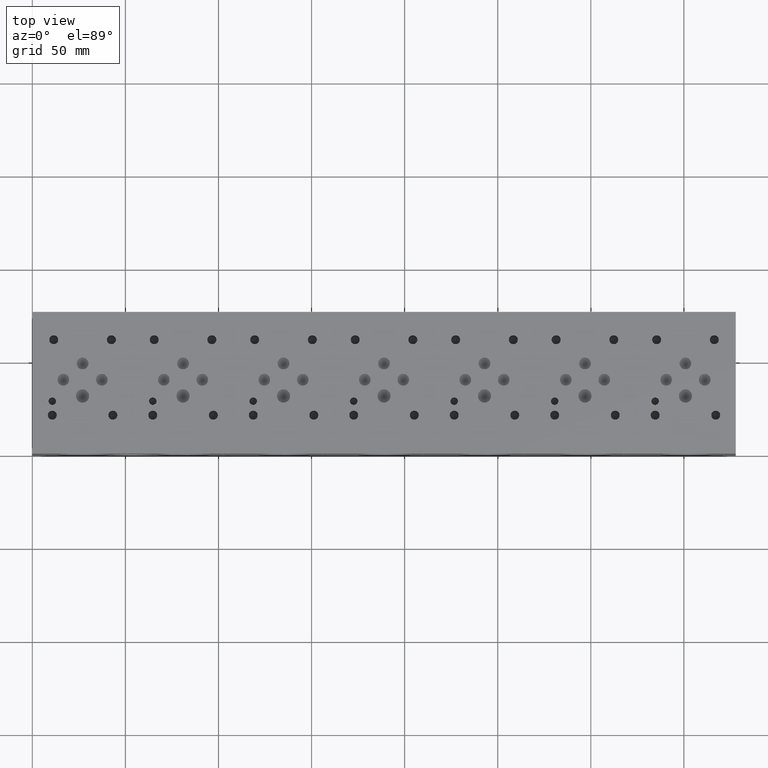
[diagram: clean part render]
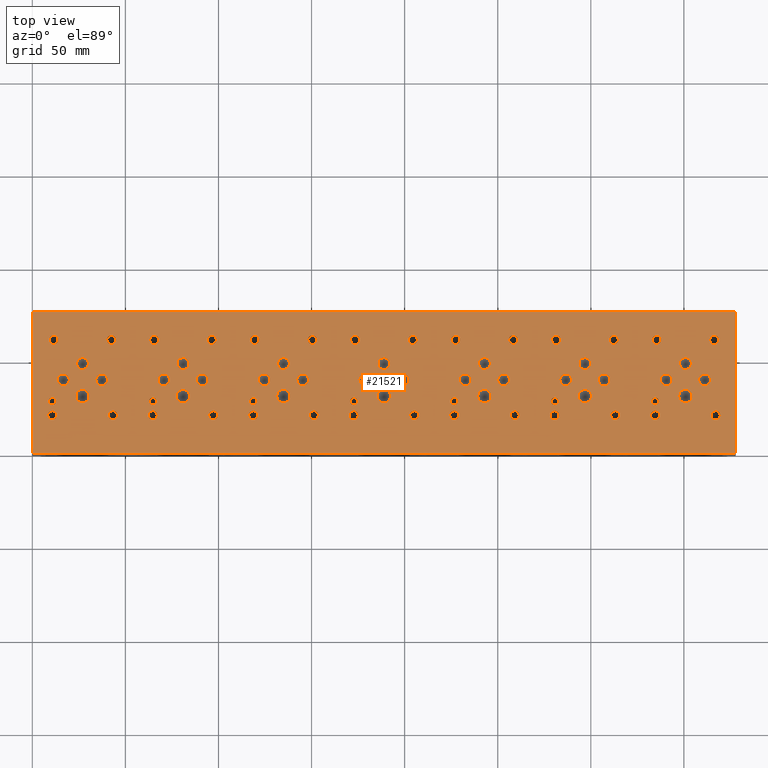
[diagram: same view with one face highlighted and labeled with its STEP entity id]
A machine part, top view. The second image highlights one B-rep face of the part: STEP entity #21521.
In plain terms, the highlighted planar face has unit normal (0, 0, 1).
Its self-contained STEP definition (entity closure, byte-faithful):
#442=CIRCLE('',#22077,1.9812);
#443=CIRCLE('',#22078,1.9812);
#446=CIRCLE('',#22083,1.9812);
#447=CIRCLE('',#22084,1.9812);
#450=CIRCLE('',#22089,1.9812);
#451=CIRCLE('',#22090,1.9812);
#454=CIRCLE('',#22095,1.9812);
#455=CIRCLE('',#22096,1.9812);
#458=CIRCLE('',#22101,1.9812);
#459=CIRCLE('',#22102,1.9812);
#462=CIRCLE('',#22107,1.9812);
#463=CIRCLE('',#22108,1.9812);
#466=CIRCLE('',#22113,3.5687);
#467=CIRCLE('',#22114,3.5687);
#470=CIRCLE('',#22119,3.5687);
#471=CIRCLE('',#22120,3.5687);
#474=CIRCLE('',#22125,3.5687);
#475=CIRCLE('',#22126,3.5687);
#478=CIRCLE('',#22131,3.5687);
#479=CIRCLE('',#22132,3.5687);
#482=CIRCLE('',#22137,3.5687);
#483=CIRCLE('',#22138,3.5687);
#486=CIRCLE('',#22143,3.5687);
#487=CIRCLE('',#22144,3.5687);
#490=CIRCLE('',#22149,3.5687);
#491=CIRCLE('',#22150,3.5687);
#494=CIRCLE('',#22155,3.175);
#495=CIRCLE('',#22156,3.175);
#498=CIRCLE('',#22161,3.175);
#499=CIRCLE('',#22162,3.175);
#502=CIRCLE('',#22167,3.175);
#503=CIRCLE('',#22168,3.175);
#506=CIRCLE('',#22173,3.175);
#507=CIRCLE('',#22174,3.175);
#510=CIRCLE('',#22179,3.175);
#511=CIRCLE('',#22180,3.175);
#514=CIRCLE('',#22185,3.175);
#515=CIRCLE('',#22186,3.175);
#518=CIRCLE('',#22191,3.175);
#519=CIRCLE('',#22192,3.175);
#522=CIRCLE('',#22197,3.175);
#523=CIRCLE('',#22198,3.175);
#526=CIRCLE('',#22203,3.175);
#527=CIRCLE('',#22204,3.175);
#530=CIRCLE('',#22209,3.175);
#531=CIRCLE('',#22210,3.175);
#534=CIRCLE('',#22215,3.175);
#535=CIRCLE('',#22216,3.175);
#538=CIRCLE('',#22221,3.175);
#539=CIRCLE('',#22222,3.175);
#542=CIRCLE('',#22227,3.175);
#543=CIRCLE('',#22228,3.175);
#546=CIRCLE('',#22233,3.175);
#547=CIRCLE('',#22234,3.175);
#550=CIRCLE('',#22239,3.175);
#551=CIRCLE('',#22240,3.175);
#554=CIRCLE('',#22245,3.175);
#555=CIRCLE('',#22246,3.175);
#558=CIRCLE('',#22251,3.175);
#559=CIRCLE('',#22252,3.175);
#562=CIRCLE('',#22257,3.175);
#563=CIRCLE('',#22258,3.175);
#566=CIRCLE('',#22263,3.175);
#567=CIRCLE('',#22264,3.175);
#570=CIRCLE('',#22269,3.175);
#571=CIRCLE('',#22270,3.175);
#574=CIRCLE('',#22275,3.175);
#575=CIRCLE('',#22276,3.175);
#578=CIRCLE('',#22281,1.9812);
#579=CIRCLE('',#22282,1.9812);
#585=CIRCLE('',#22291,2.413);
#586=CIRCLE('',#22292,2.413);
#592=CIRCLE('',#22302,2.413);
#593=CIRCLE('',#22303,2.413);
#599=CIRCLE('',#22313,2.413);
#600=CIRCLE('',#22314,2.413);
#606=CIRCLE('',#22324,2.413);
#607=CIRCLE('',#22325,2.413);
#613=CIRCLE('',#22335,2.413);
#614=CIRCLE('',#22336,2.413);
#620=CIRCLE('',#22346,2.413);
#621=CIRCLE('',#22347,2.413);
#627=CIRCLE('',#22357,2.413);
#628=CIRCLE('',#22358,2.413);
#634=CIRCLE('',#22368,2.413);
#635=CIRCLE('',#22369,2.413);
#641=CIRCLE('',#22379,2.413);
#642=CIRCLE('',#22380,2.413);
#648=CIRCLE('',#22390,2.413);
#649=CIRCLE('',#22391,2.413);
#655=CIRCLE('',#22401,2.413);
#656=CIRCLE('',#22402,2.413);
#662=CIRCLE('',#22412,2.413);
#663=CIRCLE('',#22413,2.413);
#669=CIRCLE('',#22423,2.413);
#670=CIRCLE('',#22424,2.413);
#676=CIRCLE('',#22434,2.413);
#677=CIRCLE('',#22435,2.413);
#683=CIRCLE('',#22445,2.413);
#684=CIRCLE('',#22446,2.413);
#690=CIRCLE('',#22456,2.413);
#691=CIRCLE('',#22457,2.413);
#697=CIRCLE('',#22467,2.413);
#698=CIRCLE('',#22468,2.413);
#704=CIRCLE('',#22478,2.413);
#705=CIRCLE('',#22479,2.413);
#711=CIRCLE('',#22489,2.413);
#712=CIRCLE('',#22490,2.413);
#718=CIRCLE('',#22500,2.413);
#719=CIRCLE('',#22501,2.413);
#725=CIRCLE('',#22511,2.413);
#726=CIRCLE('',#22512,2.413);
#732=CIRCLE('',#22522,2.413);
#733=CIRCLE('',#22523,2.413);
#739=CIRCLE('',#22533,2.413);
#740=CIRCLE('',#22534,2.413);
#746=CIRCLE('',#22544,2.413);
#747=CIRCLE('',#22545,2.413);
#753=CIRCLE('',#22555,2.413);
#754=CIRCLE('',#22556,2.413);
#760=CIRCLE('',#22566,2.413);
#761=CIRCLE('',#22567,2.413);
#767=CIRCLE('',#22577,2.413);
#768=CIRCLE('',#22578,2.413);
#774=CIRCLE('',#22588,2.413);
#775=CIRCLE('',#22589,2.413);
#1289=FACE_BOUND('',#4513,.T.);
#1290=FACE_BOUND('',#4514,.T.);
#1291=FACE_BOUND('',#4515,.T.);
#1292=FACE_BOUND('',#4516,.T.);
#1293=FACE_BOUND('',#4517,.T.);
#1294=FACE_BOUND('',#4518,.T.);
#1295=FACE_BOUND('',#4519,.T.);
#1296=FACE_BOUND('',#4520,.T.);
#1297=FACE_BOUND('',#4521,.T.);
#1298=FACE_BOUND('',#4522,.T.);
#1299=FACE_BOUND('',#4523,.T.);
#1300=FACE_BOUND('',#4524,.T.);
#1301=FACE_BOUND('',#4525,.T.);
#1302=FACE_BOUND('',#4526,.T.);
#1303=FACE_BOUND('',#4527,.T.);
#1304=FACE_BOUND('',#4528,.T.);
#1305=FACE_BOUND('',#4529,.T.);
#1306=FACE_BOUND('',#4530,.T.);
#1307=FACE_BOUND('',#4531,.T.);
#1308=FACE_BOUND('',#4532,.T.);
#1309=FACE_BOUND('',#4533,.T.);
#1310=FACE_BOUND('',#4534,.T.);
#1311=FACE_BOUND('',#4535,.T.);
#1312=FACE_BOUND('',#4536,.T.);
#1313=FACE_BOUND('',#4537,.T.);
#1314=FACE_BOUND('',#4538,.T.);
#1315=FACE_BOUND('',#4539,.T.);
#1316=FACE_BOUND('',#4540,.T.);
#1317=FACE_BOUND('',#4541,.T.);
#1318=FACE_BOUND('',#4542,.T.);
#1319=FACE_BOUND('',#4543,.T.);
#1320=FACE_BOUND('',#4544,.T.);
#1321=FACE_BOUND('',#4545,.T.);
#1322=FACE_BOUND('',#4546,.T.);
#1323=FACE_BOUND('',#4547,.T.);
#1324=FACE_BOUND('',#4548,.T.);
#1325=FACE_BOUND('',#4549,.T.);
#1326=FACE_BOUND('',#4550,.T.);
#1327=FACE_BOUND('',#4551,.T.);
#1328=FACE_BOUND('',#4552,.T.);
#1329=FACE_BOUND('',#4553,.T.);
#1330=FACE_BOUND('',#4554,.T.);
#1331=FACE_BOUND('',#4555,.T.);
#1332=FACE_BOUND('',#4556,.T.);
#1333=FACE_BOUND('',#4557,.T.);
#1334=FACE_BOUND('',#4558,.T.);
#1335=FACE_BOUND('',#4559,.T.);
#1336=FACE_BOUND('',#4560,.T.);
#1337=FACE_BOUND('',#4561,.T.);
#1338=FACE_BOUND('',#4562,.T.);
#1339=FACE_BOUND('',#4563,.T.);
#1340=FACE_BOUND('',#4564,.T.);
#1341=FACE_BOUND('',#4565,.T.);
#1342=FACE_BOUND('',#4566,.T.);
#1343=FACE_BOUND('',#4567,.T.);
#1344=FACE_BOUND('',#4568,.T.);
#1345=FACE_BOUND('',#4569,.T.);
#1346=FACE_BOUND('',#4570,.T.);
#1347=FACE_BOUND('',#4571,.T.);
#1348=FACE_BOUND('',#4572,.T.);
#1349=FACE_BOUND('',#4573,.T.);
#1350=FACE_BOUND('',#4574,.T.);
#1351=FACE_BOUND('',#4575,.T.);
#3217=FACE_OUTER_BOUND('',#4512,.T.);
#4512=EDGE_LOOP('',(#19063,#19064,#19065,#19066));
#4513=EDGE_LOOP('',(#19067,#19068));
#4514=EDGE_LOOP('',(#19069,#19070));
#4515=EDGE_LOOP('',(#19071,#19072));
#4516=EDGE_LOOP('',(#19073,#19074));
#4517=EDGE_LOOP('',(#19075,#19076));
#4518=EDGE_LOOP('',(#19077,#19078));
#4519=EDGE_LOOP('',(#19079,#19080));
#4520=EDGE_LOOP('',(#19081,#19082));
#4521=EDGE_LOOP('',(#19083,#19084));
#4522=EDGE_LOOP('',(#19085,#19086));
#4523=EDGE_LOOP('',(#19087,#19088));
#4524=EDGE_LOOP('',(#19089,#19090));
#4525=EDGE_LOOP('',(#19091,#19092));
#4526=EDGE_LOOP('',(#19093,#19094));
#4527=EDGE_LOOP('',(#19095,#19096));
#4528=EDGE_LOOP('',(#19097,#19098));
#4529=EDGE_LOOP('',(#19099,#19100));
#4530=EDGE_LOOP('',(#19101,#19102));
#4531=EDGE_LOOP('',(#19103,#19104));
#4532=EDGE_LOOP('',(#19105,#19106));
#4533=EDGE_LOOP('',(#19107,#19108));
#4534=EDGE_LOOP('',(#19109,#19110));
#4535=EDGE_LOOP('',(#19111,#19112));
#4536=EDGE_LOOP('',(#19113,#19114));
#4537=EDGE_LOOP('',(#19115,#19116));
#4538=EDGE_LOOP('',(#19117,#19118));
#4539=EDGE_LOOP('',(#19119,#19120));
#4540=EDGE_LOOP('',(#19121,#19122));
#4541=EDGE_LOOP('',(#19123,#19124));
#4542=EDGE_LOOP('',(#19125,#19126));
#4543=EDGE_LOOP('',(#19127,#19128));
#4544=EDGE_LOOP('',(#19129,#19130));
#4545=EDGE_LOOP('',(#19131,#19132));
#4546=EDGE_LOOP('',(#19133,#19134));
#4547=EDGE_LOOP('',(#19135,#19136));
#4548=EDGE_LOOP('',(#19137,#19138));
#4549=EDGE_LOOP('',(#19139,#19140));
#4550=EDGE_LOOP('',(#19141,#19142));
#4551=EDGE_LOOP('',(#19143,#19144));
#4552=EDGE_LOOP('',(#19145,#19146));
#4553=EDGE_LOOP('',(#19147,#19148));
#4554=EDGE_LOOP('',(#19149,#19150));
#4555=EDGE_LOOP('',(#19151,#19152));
#4556=EDGE_LOOP('',(#19153,#19154));
#4557=EDGE_LOOP('',(#19155,#19156));
#4558=EDGE_LOOP('',(#19157,#19158));
#4559=EDGE_LOOP('',(#19159,#19160));
#4560=EDGE_LOOP('',(#19161,#19162));
#4561=EDGE_LOOP('',(#19163,#19164));
#4562=EDGE_LOOP('',(#19165,#19166));
#4563=EDGE_LOOP('',(#19167,#19168));
#4564=EDGE_LOOP('',(#19169,#19170));
#4565=EDGE_LOOP('',(#19171,#19172));
#4566=EDGE_LOOP('',(#19173,#19174));
#4567=EDGE_LOOP('',(#19175,#19176));
#4568=EDGE_LOOP('',(#19177,#19178));
#4569=EDGE_LOOP('',(#19179,#19180));
#4570=EDGE_LOOP('',(#19181,#19182));
#4571=EDGE_LOOP('',(#19183,#19184));
#4572=EDGE_LOOP('',(#19185,#19186));
#4573=EDGE_LOOP('',(#19187,#19188));
#4574=EDGE_LOOP('',(#19189,#19190));
#4575=EDGE_LOOP('',(#19191,#19192));
#4872=LINE('',#30683,#6627);
#5892=LINE('',#35011,#7647);
#5950=LINE('',#35282,#7705);
#6331=LINE('',#37637,#8086);
#6627=VECTOR('',#23618,10.);
#7647=VECTOR('',#25398,10.);
#7705=VECTOR('',#25510,10.);
#8086=VECTOR('',#28199,10.);
#8431=VERTEX_POINT('',#30680);
#8432=VERTEX_POINT('',#30682);
#9312=VERTEX_POINT('',#35009);
#9370=VERTEX_POINT('',#35281);
#9425=VERTEX_POINT('',#35434);
#9426=VERTEX_POINT('',#35435);
#9430=VERTEX_POINT('',#35447);
#9431=VERTEX_POINT('',#35448);
#9435=VERTEX_POINT('',#35460);
#9436=VERTEX_POINT('',#35461);
#9440=VERTEX_POINT('',#35473);
#9441=VERTEX_POINT('',#35474);
#9445=VERTEX_POINT('',#35486);
#9446=VERTEX_POINT('',#35487);
#9450=VERTEX_POINT('',#35499);
#9451=VERTEX_POINT('',#35500);
#9455=VERTEX_POINT('',#35512);
#9456=VERTEX_POINT('',#35513);
#9460=VERTEX_POINT('',#35525);
#9461=VERTEX_POINT('',#35526);
#9465=VERTEX_POINT('',#35538);
#9466=VERTEX_POINT('',#35539);
#9470=VERTEX_POINT('',#35551);
#9471=VERTEX_POINT('',#35552);
#9475=VERTEX_POINT('',#35564);
#9476=VERTEX_POINT('',#35565);
#9480=VERTEX_POINT('',#35577);
#9481=VERTEX_POINT('',#35578);
#9485=VERTEX_POINT('',#35590);
#9486=VERTEX_POINT('',#35591);
#9490=VERTEX_POINT('',#35603);
#9491=VERTEX_POINT('',#35604);
#9495=VERTEX_POINT('',#35616);
#9496=VERTEX_POINT('',#35617);
#9500=VERTEX_POINT('',#35629);
#9501=VERTEX_POINT('',#35630);
#9505=VERTEX_POINT('',#35642);
#9506=VERTEX_POINT('',#35643);
#9510=VERTEX_POINT('',#35655);
#9511=VERTEX_POINT('',#35656);
#9515=VERTEX_POINT('',#35668);
#9516=VERTEX_POINT('',#35669);
#9520=VERTEX_POINT('',#35681);
#9521=VERTEX_POINT('',#35682);
#9525=VERTEX_POINT('',#35694);
#9526=VERTEX_POINT('',#35695);
#9530=VERTEX_POINT('',#35707);
#9531=VERTEX_POINT('',#35708);
#9535=VERTEX_POINT('',#35720);
#9536=VERTEX_POINT('',#35721);
#9540=VERTEX_POINT('',#35733);
#9541=VERTEX_POINT('',#35734);
#9545=VERTEX_POINT('',#35746);
#9546=VERTEX_POINT('',#35747);
#9550=VERTEX_POINT('',#35759);
#9551=VERTEX_POINT('',#35760);
#9555=VERTEX_POINT('',#35772);
#9556=VERTEX_POINT('',#35773);
#9560=VERTEX_POINT('',#35785);
#9561=VERTEX_POINT('',#35786);
#9565=VERTEX_POINT('',#35798);
#9566=VERTEX_POINT('',#35799);
#9570=VERTEX_POINT('',#35811);
#9571=VERTEX_POINT('',#35812);
#9575=VERTEX_POINT('',#35824);
#9576=VERTEX_POINT('',#35825);
#9580=VERTEX_POINT('',#35837);
#9581=VERTEX_POINT('',#35838);
#9585=VERTEX_POINT('',#35850);
#9586=VERTEX_POINT('',#35851);
#9590=VERTEX_POINT('',#35863);
#9591=VERTEX_POINT('',#35864);
#9595=VERTEX_POINT('',#35876);
#9596=VERTEX_POINT('',#35877);
#9603=VERTEX_POINT('',#35896);
#9604=VERTEX_POINT('',#35897);
#9611=VERTEX_POINT('',#35918);
#9612=VERTEX_POINT('',#35919);
#9619=VERTEX_POINT('',#35940);
#9620=VERTEX_POINT('',#35941);
#9627=VERTEX_POINT('',#35962);
#9628=VERTEX_POINT('',#35963);
#9635=VERTEX_POINT('',#35984);
#9636=VERTEX_POINT('',#35985);
#9643=VERTEX_POINT('',#36006);
#9644=VERTEX_POINT('',#36007);
#9651=VERTEX_POINT('',#36028);
#9652=VERTEX_POINT('',#36029);
#9659=VERTEX_POINT('',#36050);
#9660=VERTEX_POINT('',#36051);
#9667=VERTEX_POINT('',#36072);
#9668=VERTEX_POINT('',#36073);
#9675=VERTEX_POINT('',#36094);
#9676=VERTEX_POINT('',#36095);
#9683=VERTEX_POINT('',#36116);
#9684=VERTEX_POINT('',#36117);
#9691=VERTEX_POINT('',#36138);
#9692=VERTEX_POINT('',#36139);
#9699=VERTEX_POINT('',#36160);
#9700=VERTEX_POINT('',#36161);
#9707=VERTEX_POINT('',#36182);
#9708=VERTEX_POINT('',#36183);
#9715=VERTEX_POINT('',#36204);
#9716=VERTEX_POINT('',#36205);
#9723=VERTEX_POINT('',#36226);
#9724=VERTEX_POINT('',#36227);
#9731=VERTEX_POINT('',#36248);
#9732=VERTEX_POINT('',#36249);
#9739=VERTEX_POINT('',#36270);
#9740=VERTEX_POINT('',#36271);
#9747=VERTEX_POINT('',#36292);
#9748=VERTEX_POINT('',#36293);
#9755=VERTEX_POINT('',#36314);
#9756=VERTEX_POINT('',#36315);
#9763=VERTEX_POINT('',#36336);
#9764=VERTEX_POINT('',#36337);
#9771=VERTEX_POINT('',#36358);
#9772=VERTEX_POINT('',#36359);
#9779=VERTEX_POINT('',#36380);
#9780=VERTEX_POINT('',#36381);
#9787=VERTEX_POINT('',#36402);
#9788=VERTEX_POINT('',#36403);
#9795=VERTEX_POINT('',#36424);
#9796=VERTEX_POINT('',#36425);
#9803=VERTEX_POINT('',#36446);
#9804=VERTEX_POINT('',#36447);
#9811=VERTEX_POINT('',#36468);
#9812=VERTEX_POINT('',#36469);
#9819=VERTEX_POINT('',#36490);
#9820=VERTEX_POINT('',#36491);
#10706=EDGE_CURVE('',#8432,#8431,#4872,.T.);
#12012=EDGE_CURVE('',#8431,#9312,#5892,.T.);
#12094=EDGE_CURVE('',#9370,#8432,#5950,.T.);
#12168=EDGE_CURVE('',#9425,#9426,#442,.T.);
#12169=EDGE_CURVE('',#9426,#9425,#443,.T.);
#12174=EDGE_CURVE('',#9430,#9431,#446,.T.);
#12175=EDGE_CURVE('',#9431,#9430,#447,.T.);
#12180=EDGE_CURVE('',#9435,#9436,#450,.T.);
#12181=EDGE_CURVE('',#9436,#9435,#451,.T.);
#12186=EDGE_CURVE('',#9440,#9441,#454,.T.);
#12187=EDGE_CURVE('',#9441,#9440,#455,.T.);
#12192=EDGE_CURVE('',#9445,#9446,#458,.T.);
#12193=EDGE_CURVE('',#9446,#9445,#459,.T.);
#12198=EDGE_CURVE('',#9450,#9451,#462,.T.);
#12199=EDGE_CURVE('',#9451,#9450,#463,.T.);
#12204=EDGE_CURVE('',#9455,#9456,#466,.T.);
#12205=EDGE_CURVE('',#9456,#9455,#467,.T.);
#12210=EDGE_CURVE('',#9460,#9461,#470,.T.);
#12211=EDGE_CURVE('',#9461,#9460,#471,.T.);
#12216=EDGE_CURVE('',#9465,#9466,#474,.T.);
#12217=EDGE_CURVE('',#9466,#9465,#475,.T.);
#12222=EDGE_CURVE('',#9470,#9471,#478,.T.);
#12223=EDGE_CURVE('',#9471,#9470,#479,.T.);
#12228=EDGE_CURVE('',#9475,#9476,#482,.T.);
#12229=EDGE_CURVE('',#9476,#9475,#483,.T.);
#12234=EDGE_CURVE('',#9480,#9481,#486,.T.);
#12235=EDGE_CURVE('',#9481,#9480,#487,.T.);
#12240=EDGE_CURVE('',#9485,#9486,#490,.T.);
#12241=EDGE_CURVE('',#9486,#9485,#491,.T.);
#12246=EDGE_CURVE('',#9490,#9491,#494,.T.);
#12247=EDGE_CURVE('',#9491,#9490,#495,.T.);
#12252=EDGE_CURVE('',#9495,#9496,#498,.T.);
#12253=EDGE_CURVE('',#9496,#9495,#499,.T.);
#12258=EDGE_CURVE('',#9500,#9501,#502,.T.);
#12259=EDGE_CURVE('',#9501,#9500,#503,.T.);
#12264=EDGE_CURVE('',#9505,#9506,#506,.T.);
#12265=EDGE_CURVE('',#9506,#9505,#507,.T.);
#12270=EDGE_CURVE('',#9510,#9511,#510,.T.);
#12271=EDGE_CURVE('',#9511,#9510,#511,.T.);
#12276=EDGE_CURVE('',#9515,#9516,#514,.T.);
#12277=EDGE_CURVE('',#9516,#9515,#515,.T.);
#12282=EDGE_CURVE('',#9520,#9521,#518,.T.);
#12283=EDGE_CURVE('',#9521,#9520,#519,.T.);
#12288=EDGE_CURVE('',#9525,#9526,#522,.T.);
#12289=EDGE_CURVE('',#9526,#9525,#523,.T.);
#12294=EDGE_CURVE('',#9530,#9531,#526,.T.);
#12295=EDGE_CURVE('',#9531,#9530,#527,.T.);
#12300=EDGE_CURVE('',#9535,#9536,#530,.T.);
#12301=EDGE_CURVE('',#9536,#9535,#531,.T.);
#12306=EDGE_CURVE('',#9540,#9541,#534,.T.);
#12307=EDGE_CURVE('',#9541,#9540,#535,.T.);
#12312=EDGE_CURVE('',#9545,#9546,#538,.T.);
#12313=EDGE_CURVE('',#9546,#9545,#539,.T.);
#12318=EDGE_CURVE('',#9550,#9551,#542,.T.);
#12319=EDGE_CURVE('',#9551,#9550,#543,.T.);
#12324=EDGE_CURVE('',#9555,#9556,#546,.T.);
#12325=EDGE_CURVE('',#9556,#9555,#547,.T.);
#12330=EDGE_CURVE('',#9560,#9561,#550,.T.);
#12331=EDGE_CURVE('',#9561,#9560,#551,.T.);
#12336=EDGE_CURVE('',#9565,#9566,#554,.T.);
#12337=EDGE_CURVE('',#9566,#9565,#555,.T.);
#12342=EDGE_CURVE('',#9570,#9571,#558,.T.);
#12343=EDGE_CURVE('',#9571,#9570,#559,.T.);
#12348=EDGE_CURVE('',#9575,#9576,#562,.T.);
#12349=EDGE_CURVE('',#9576,#9575,#563,.T.);
#12354=EDGE_CURVE('',#9580,#9581,#566,.T.);
#12355=EDGE_CURVE('',#9581,#9580,#567,.T.);
#12360=EDGE_CURVE('',#9585,#9586,#570,.T.);
#12361=EDGE_CURVE('',#9586,#9585,#571,.T.);
#12366=EDGE_CURVE('',#9590,#9591,#574,.T.);
#12367=EDGE_CURVE('',#9591,#9590,#575,.T.);
#12372=EDGE_CURVE('',#9595,#9596,#578,.T.);
#12373=EDGE_CURVE('',#9596,#9595,#579,.T.);
#12381=EDGE_CURVE('',#9603,#9604,#585,.T.);
#12382=EDGE_CURVE('',#9604,#9603,#586,.T.);
#12391=EDGE_CURVE('',#9611,#9612,#592,.T.);
#12392=EDGE_CURVE('',#9612,#9611,#593,.T.);
#12401=EDGE_CURVE('',#9619,#9620,#599,.T.);
#12402=EDGE_CURVE('',#9620,#9619,#600,.T.);
#12411=EDGE_CURVE('',#9627,#9628,#606,.T.);
#12412=EDGE_CURVE('',#9628,#9627,#607,.T.);
#12421=EDGE_CURVE('',#9635,#9636,#613,.T.);
#12422=EDGE_CURVE('',#9636,#9635,#614,.T.);
#12431=EDGE_CURVE('',#9643,#9644,#620,.T.);
#12432=EDGE_CURVE('',#9644,#9643,#621,.T.);
#12441=EDGE_CURVE('',#9651,#9652,#627,.T.);
#12442=EDGE_CURVE('',#9652,#9651,#628,.T.);
#12451=EDGE_CURVE('',#9659,#9660,#634,.T.);
#12452=EDGE_CURVE('',#9660,#9659,#635,.T.);
#12461=EDGE_CURVE('',#9667,#9668,#641,.T.);
#12462=EDGE_CURVE('',#9668,#9667,#642,.T.);
#12471=EDGE_CURVE('',#9675,#9676,#648,.T.);
#12472=EDGE_CURVE('',#9676,#9675,#649,.T.);
#12481=EDGE_CURVE('',#9683,#9684,#655,.T.);
#12482=EDGE_CURVE('',#9684,#9683,#656,.T.);
#12491=EDGE_CURVE('',#9691,#9692,#662,.T.);
#12492=EDGE_CURVE('',#9692,#9691,#663,.T.);
#12501=EDGE_CURVE('',#9699,#9700,#669,.T.);
#12502=EDGE_CURVE('',#9700,#9699,#670,.T.);
#12511=EDGE_CURVE('',#9707,#9708,#676,.T.);
#12512=EDGE_CURVE('',#9708,#9707,#677,.T.);
#12521=EDGE_CURVE('',#9715,#9716,#683,.T.);
#12522=EDGE_CURVE('',#9716,#9715,#684,.T.);
#12531=EDGE_CURVE('',#9723,#9724,#690,.T.);
#12532=EDGE_CURVE('',#9724,#9723,#691,.T.);
#12541=EDGE_CURVE('',#9731,#9732,#697,.T.);
#12542=EDGE_CURVE('',#9732,#9731,#698,.T.);
#12551=EDGE_CURVE('',#9739,#9740,#704,.T.);
#12552=EDGE_CURVE('',#9740,#9739,#705,.T.);
#12561=EDGE_CURVE('',#9747,#9748,#711,.T.);
#12562=EDGE_CURVE('',#9748,#9747,#712,.T.);
#12571=EDGE_CURVE('',#9755,#9756,#718,.T.);
#12572=EDGE_CURVE('',#9756,#9755,#719,.T.);
#12581=EDGE_CURVE('',#9763,#9764,#725,.T.);
#12582=EDGE_CURVE('',#9764,#9763,#726,.T.);
#12591=EDGE_CURVE('',#9771,#9772,#732,.T.);
#12592=EDGE_CURVE('',#9772,#9771,#733,.T.);
#12601=EDGE_CURVE('',#9779,#9780,#739,.T.);
#12602=EDGE_CURVE('',#9780,#9779,#740,.T.);
#12611=EDGE_CURVE('',#9787,#9788,#746,.T.);
#12612=EDGE_CURVE('',#9788,#9787,#747,.T.);
#12621=EDGE_CURVE('',#9795,#9796,#753,.T.);
#12622=EDGE_CURVE('',#9796,#9795,#754,.T.);
#12631=EDGE_CURVE('',#9803,#9804,#760,.T.);
#12632=EDGE_CURVE('',#9804,#9803,#761,.T.);
#12641=EDGE_CURVE('',#9811,#9812,#767,.T.);
#12642=EDGE_CURVE('',#9812,#9811,#768,.T.);
#12651=EDGE_CURVE('',#9819,#9820,#774,.T.);
#12652=EDGE_CURVE('',#9820,#9819,#775,.T.);
#13192=EDGE_CURVE('',#9312,#9370,#6331,.T.);
#19063=ORIENTED_EDGE('',*,*,#10706,.T.);
#19064=ORIENTED_EDGE('',*,*,#12012,.T.);
#19065=ORIENTED_EDGE('',*,*,#13192,.T.);
#19066=ORIENTED_EDGE('',*,*,#12094,.T.);
#19067=ORIENTED_EDGE('',*,*,#12168,.T.);
#19068=ORIENTED_EDGE('',*,*,#12169,.T.);
#19069=ORIENTED_EDGE('',*,*,#12174,.T.);
#19070=ORIENTED_EDGE('',*,*,#12175,.T.);
#19071=ORIENTED_EDGE('',*,*,#12180,.T.);
#19072=ORIENTED_EDGE('',*,*,#12181,.T.);
#19073=ORIENTED_EDGE('',*,*,#12186,.T.);
#19074=ORIENTED_EDGE('',*,*,#12187,.T.);
#19075=ORIENTED_EDGE('',*,*,#12192,.T.);
#19076=ORIENTED_EDGE('',*,*,#12193,.T.);
#19077=ORIENTED_EDGE('',*,*,#12198,.T.);
#19078=ORIENTED_EDGE('',*,*,#12199,.T.);
#19079=ORIENTED_EDGE('',*,*,#12204,.T.);
#19080=ORIENTED_EDGE('',*,*,#12205,.T.);
#19081=ORIENTED_EDGE('',*,*,#12210,.T.);
#19082=ORIENTED_EDGE('',*,*,#12211,.T.);
#19083=ORIENTED_EDGE('',*,*,#12216,.T.);
#19084=ORIENTED_EDGE('',*,*,#12217,.T.);
#19085=ORIENTED_EDGE('',*,*,#12222,.T.);
#19086=ORIENTED_EDGE('',*,*,#12223,.T.);
#19087=ORIENTED_EDGE('',*,*,#12228,.T.);
#19088=ORIENTED_EDGE('',*,*,#12229,.T.);
#19089=ORIENTED_EDGE('',*,*,#12234,.T.);
#19090=ORIENTED_EDGE('',*,*,#12235,.T.);
#19091=ORIENTED_EDGE('',*,*,#12240,.T.);
#19092=ORIENTED_EDGE('',*,*,#12241,.T.);
#19093=ORIENTED_EDGE('',*,*,#12246,.T.);
#19094=ORIENTED_EDGE('',*,*,#12247,.T.);
#19095=ORIENTED_EDGE('',*,*,#12252,.T.);
#19096=ORIENTED_EDGE('',*,*,#12253,.T.);
#19097=ORIENTED_EDGE('',*,*,#12258,.T.);
#19098=ORIENTED_EDGE('',*,*,#12259,.T.);
#19099=ORIENTED_EDGE('',*,*,#12264,.T.);
#19100=ORIENTED_EDGE('',*,*,#12265,.T.);
#19101=ORIENTED_EDGE('',*,*,#12270,.T.);
#19102=ORIENTED_EDGE('',*,*,#12271,.T.);
#19103=ORIENTED_EDGE('',*,*,#12276,.T.);
#19104=ORIENTED_EDGE('',*,*,#12277,.T.);
#19105=ORIENTED_EDGE('',*,*,#12282,.T.);
#19106=ORIENTED_EDGE('',*,*,#12283,.T.);
#19107=ORIENTED_EDGE('',*,*,#12288,.T.);
#19108=ORIENTED_EDGE('',*,*,#12289,.T.);
#19109=ORIENTED_EDGE('',*,*,#12294,.T.);
#19110=ORIENTED_EDGE('',*,*,#12295,.T.);
#19111=ORIENTED_EDGE('',*,*,#12300,.T.);
#19112=ORIENTED_EDGE('',*,*,#12301,.T.);
#19113=ORIENTED_EDGE('',*,*,#12306,.T.);
#19114=ORIENTED_EDGE('',*,*,#12307,.T.);
#19115=ORIENTED_EDGE('',*,*,#12312,.T.);
#19116=ORIENTED_EDGE('',*,*,#12313,.T.);
#19117=ORIENTED_EDGE('',*,*,#12318,.T.);
#19118=ORIENTED_EDGE('',*,*,#12319,.T.);
#19119=ORIENTED_EDGE('',*,*,#12324,.T.);
#19120=ORIENTED_EDGE('',*,*,#12325,.T.);
#19121=ORIENTED_EDGE('',*,*,#12330,.T.);
#19122=ORIENTED_EDGE('',*,*,#12331,.T.);
#19123=ORIENTED_EDGE('',*,*,#12336,.T.);
#19124=ORIENTED_EDGE('',*,*,#12337,.T.);
#19125=ORIENTED_EDGE('',*,*,#12342,.T.);
#19126=ORIENTED_EDGE('',*,*,#12343,.T.);
#19127=ORIENTED_EDGE('',*,*,#12348,.T.);
#19128=ORIENTED_EDGE('',*,*,#12349,.T.);
#19129=ORIENTED_EDGE('',*,*,#12354,.T.);
#19130=ORIENTED_EDGE('',*,*,#12355,.T.);
#19131=ORIENTED_EDGE('',*,*,#12360,.T.);
#19132=ORIENTED_EDGE('',*,*,#12361,.T.);
#19133=ORIENTED_EDGE('',*,*,#12366,.T.);
#19134=ORIENTED_EDGE('',*,*,#12367,.T.);
#19135=ORIENTED_EDGE('',*,*,#12372,.T.);
#19136=ORIENTED_EDGE('',*,*,#12373,.T.);
#19137=ORIENTED_EDGE('',*,*,#12381,.T.);
#19138=ORIENTED_EDGE('',*,*,#12382,.T.);
#19139=ORIENTED_EDGE('',*,*,#12391,.T.);
#19140=ORIENTED_EDGE('',*,*,#12392,.T.);
#19141=ORIENTED_EDGE('',*,*,#12401,.T.);
#19142=ORIENTED_EDGE('',*,*,#12402,.T.);
#19143=ORIENTED_EDGE('',*,*,#12411,.T.);
#19144=ORIENTED_EDGE('',*,*,#12412,.T.);
#19145=ORIENTED_EDGE('',*,*,#12421,.T.);
#19146=ORIENTED_EDGE('',*,*,#12422,.T.);
#19147=ORIENTED_EDGE('',*,*,#12431,.T.);
#19148=ORIENTED_EDGE('',*,*,#12432,.T.);
#19149=ORIENTED_EDGE('',*,*,#12441,.T.);
#19150=ORIENTED_EDGE('',*,*,#12442,.T.);
#19151=ORIENTED_EDGE('',*,*,#12451,.T.);
#19152=ORIENTED_EDGE('',*,*,#12452,.T.);
#19153=ORIENTED_EDGE('',*,*,#12461,.T.);
#19154=ORIENTED_EDGE('',*,*,#12462,.T.);
#19155=ORIENTED_EDGE('',*,*,#12471,.T.);
#19156=ORIENTED_EDGE('',*,*,#12472,.T.);
#19157=ORIENTED_EDGE('',*,*,#12481,.T.);
#19158=ORIENTED_EDGE('',*,*,#12482,.T.);
#19159=ORIENTED_EDGE('',*,*,#12491,.T.);
#19160=ORIENTED_EDGE('',*,*,#12492,.T.);
#19161=ORIENTED_EDGE('',*,*,#12501,.T.);
#19162=ORIENTED_EDGE('',*,*,#12502,.T.);
#19163=ORIENTED_EDGE('',*,*,#12511,.T.);
#19164=ORIENTED_EDGE('',*,*,#12512,.T.);
#19165=ORIENTED_EDGE('',*,*,#12521,.T.);
#19166=ORIENTED_EDGE('',*,*,#12522,.T.);
#19167=ORIENTED_EDGE('',*,*,#12531,.T.);
#19168=ORIENTED_EDGE('',*,*,#12532,.T.);
#19169=ORIENTED_EDGE('',*,*,#12541,.T.);
#19170=ORIENTED_EDGE('',*,*,#12542,.T.);
#19171=ORIENTED_EDGE('',*,*,#12551,.T.);
#19172=ORIENTED_EDGE('',*,*,#12552,.T.);
#19173=ORIENTED_EDGE('',*,*,#12561,.T.);
#19174=ORIENTED_EDGE('',*,*,#12562,.T.);
#19175=ORIENTED_EDGE('',*,*,#12571,.T.);
#19176=ORIENTED_EDGE('',*,*,#12572,.T.);
#19177=ORIENTED_EDGE('',*,*,#12581,.T.);
#19178=ORIENTED_EDGE('',*,*,#12582,.T.);
#19179=ORIENTED_EDGE('',*,*,#12591,.T.);
#19180=ORIENTED_EDGE('',*,*,#12592,.T.);
#19181=ORIENTED_EDGE('',*,*,#12601,.T.);
#19182=ORIENTED_EDGE('',*,*,#12602,.T.);
#19183=ORIENTED_EDGE('',*,*,#12611,.T.);
#19184=ORIENTED_EDGE('',*,*,#12612,.T.);
#19185=ORIENTED_EDGE('',*,*,#12621,.T.);
#19186=ORIENTED_EDGE('',*,*,#12622,.T.);
#19187=ORIENTED_EDGE('',*,*,#12631,.T.);
#19188=ORIENTED_EDGE('',*,*,#12632,.T.);
#19189=ORIENTED_EDGE('',*,*,#12641,.T.);
#19190=ORIENTED_EDGE('',*,*,#12642,.T.);
#19191=ORIENTED_EDGE('',*,*,#12651,.T.);
#19192=ORIENTED_EDGE('',*,*,#12652,.T.);
#19724=PLANE('',#23173);
#21521=ADVANCED_FACE('',(#3217,#1289,#1290,#1291,#1292,#1293,#1294,#1295,
#1296,#1297,#1298,#1299,#1300,#1301,#1302,#1303,#1304,#1305,#1306,#1307,
#1308,#1309,#1310,#1311,#1312,#1313,#1314,#1315,#1316,#1317,#1318,#1319,
#1320,#1321,#1322,#1323,#1324,#1325,#1326,#1327,#1328,#1329,#1330,#1331,
#1332,#1333,#1334,#1335,#1336,#1337,#1338,#1339,#1340,#1341,#1342,#1343,
#1344,#1345,#1346,#1347,#1348,#1349,#1350,#1351),#19724,.T.);
#22077=AXIS2_PLACEMENT_3D('',#35436,#25668,#25669);
#22078=AXIS2_PLACEMENT_3D('',#35437,#25670,#25671);
#22083=AXIS2_PLACEMENT_3D('',#35449,#25682,#25683);
#22084=AXIS2_PLACEMENT_3D('',#35450,#25684,#25685);
#22089=AXIS2_PLACEMENT_3D('',#35462,#25696,#25697);
#22090=AXIS2_PLACEMENT_3D('',#35463,#25698,#25699);
#22095=AXIS2_PLACEMENT_3D('',#35475,#25710,#25711);
#22096=AXIS2_PLACEMENT_3D('',#35476,#25712,#25713);
#22101=AXIS2_PLACEMENT_3D('',#35488,#25724,#25725);
#22102=AXIS2_PLACEMENT_3D('',#35489,#25726,#25727);
#22107=AXIS2_PLACEMENT_3D('',#35501,#25738,#25739);
#22108=AXIS2_PLACEMENT_3D('',#35502,#25740,#25741);
#22113=AXIS2_PLACEMENT_3D('',#35514,#25752,#25753);
#22114=AXIS2_PLACEMENT_3D('',#35515,#25754,#25755);
#22119=AXIS2_PLACEMENT_3D('',#35527,#25766,#25767);
#22120=AXIS2_PLACEMENT_3D('',#35528,#25768,#25769);
#22125=AXIS2_PLACEMENT_3D('',#35540,#25780,#25781);
#22126=AXIS2_PLACEMENT_3D('',#35541,#25782,#25783);
#22131=AXIS2_PLACEMENT_3D('',#35553,#25794,#25795);
#22132=AXIS2_PLACEMENT_3D('',#35554,#25796,#25797);
#22137=AXIS2_PLACEMENT_3D('',#35566,#25808,#25809);
#22138=AXIS2_PLACEMENT_3D('',#35567,#25810,#25811);
#22143=AXIS2_PLACEMENT_3D('',#35579,#25822,#25823);
#22144=AXIS2_PLACEMENT_3D('',#35580,#25824,#25825);
#22149=AXIS2_PLACEMENT_3D('',#35592,#25836,#25837);
#22150=AXIS2_PLACEMENT_3D('',#35593,#25838,#25839);
#22155=AXIS2_PLACEMENT_3D('',#35605,#25850,#25851);
#22156=AXIS2_PLACEMENT_3D('',#35606,#25852,#25853);
#22161=AXIS2_PLACEMENT_3D('',#35618,#25864,#25865);
#22162=AXIS2_PLACEMENT_3D('',#35619,#25866,#25867);
#22167=AXIS2_PLACEMENT_3D('',#35631,#25878,#25879);
#22168=AXIS2_PLACEMENT_3D('',#35632,#25880,#25881);
#22173=AXIS2_PLACEMENT_3D('',#35644,#25892,#25893);
#22174=AXIS2_PLACEMENT_3D('',#35645,#25894,#25895);
#22179=AXIS2_PLACEMENT_3D('',#35657,#25906,#25907);
#22180=AXIS2_PLACEMENT_3D('',#35658,#25908,#25909);
#22185=AXIS2_PLACEMENT_3D('',#35670,#25920,#25921);
#22186=AXIS2_PLACEMENT_3D('',#35671,#25922,#25923);
#22191=AXIS2_PLACEMENT_3D('',#35683,#25934,#25935);
#22192=AXIS2_PLACEMENT_3D('',#35684,#25936,#25937);
#22197=AXIS2_PLACEMENT_3D('',#35696,#25948,#25949);
#22198=AXIS2_PLACEMENT_3D('',#35697,#25950,#25951);
#22203=AXIS2_PLACEMENT_3D('',#35709,#25962,#25963);
#22204=AXIS2_PLACEMENT_3D('',#35710,#25964,#25965);
#22209=AXIS2_PLACEMENT_3D('',#35722,#25976,#25977);
#22210=AXIS2_PLACEMENT_3D('',#35723,#25978,#25979);
#22215=AXIS2_PLACEMENT_3D('',#35735,#25990,#25991);
#22216=AXIS2_PLACEMENT_3D('',#35736,#25992,#25993);
#22221=AXIS2_PLACEMENT_3D('',#35748,#26004,#26005);
#22222=AXIS2_PLACEMENT_3D('',#35749,#26006,#26007);
#22227=AXIS2_PLACEMENT_3D('',#35761,#26018,#26019);
#22228=AXIS2_PLACEMENT_3D('',#35762,#26020,#26021);
#22233=AXIS2_PLACEMENT_3D('',#35774,#26032,#26033);
#22234=AXIS2_PLACEMENT_3D('',#35775,#26034,#26035);
#22239=AXIS2_PLACEMENT_3D('',#35787,#26046,#26047);
#22240=AXIS2_PLACEMENT_3D('',#35788,#26048,#26049);
#22245=AXIS2_PLACEMENT_3D('',#35800,#26060,#26061);
#22246=AXIS2_PLACEMENT_3D('',#35801,#26062,#26063);
#22251=AXIS2_PLACEMENT_3D('',#35813,#26074,#26075);
#22252=AXIS2_PLACEMENT_3D('',#35814,#26076,#26077);
#22257=AXIS2_PLACEMENT_3D('',#35826,#26088,#26089);
#22258=AXIS2_PLACEMENT_3D('',#35827,#26090,#26091);
#22263=AXIS2_PLACEMENT_3D('',#35839,#26102,#26103);
#22264=AXIS2_PLACEMENT_3D('',#35840,#26104,#26105);
#22269=AXIS2_PLACEMENT_3D('',#35852,#26116,#26117);
#22270=AXIS2_PLACEMENT_3D('',#35853,#26118,#26119);
#22275=AXIS2_PLACEMENT_3D('',#35865,#26130,#26131);
#22276=AXIS2_PLACEMENT_3D('',#35866,#26132,#26133);
#22281=AXIS2_PLACEMENT_3D('',#35878,#26144,#26145);
#22282=AXIS2_PLACEMENT_3D('',#35879,#26146,#26147);
#22291=AXIS2_PLACEMENT_3D('',#35898,#26166,#26167);
#22292=AXIS2_PLACEMENT_3D('',#35899,#26168,#26169);
#22302=AXIS2_PLACEMENT_3D('',#35920,#26191,#26192);
#22303=AXIS2_PLACEMENT_3D('',#35921,#26193,#26194);
#22313=AXIS2_PLACEMENT_3D('',#35942,#26216,#26217);
#22314=AXIS2_PLACEMENT_3D('',#35943,#26218,#26219);
#22324=AXIS2_PLACEMENT_3D('',#35964,#26241,#26242);
#22325=AXIS2_PLACEMENT_3D('',#35965,#26243,#26244);
#22335=AXIS2_PLACEMENT_3D('',#35986,#26266,#26267);
#22336=AXIS2_PLACEMENT_3D('',#35987,#26268,#26269);
#22346=AXIS2_PLACEMENT_3D('',#36008,#26291,#26292);
#22347=AXIS2_PLACEMENT_3D('',#36009,#26293,#26294);
#22357=AXIS2_PLACEMENT_3D('',#36030,#26316,#26317);
#22358=AXIS2_PLACEMENT_3D('',#36031,#26318,#26319);
#22368=AXIS2_PLACEMENT_3D('',#36052,#26341,#26342);
#22369=AXIS2_PLACEMENT_3D('',#36053,#26343,#26344);
#22379=AXIS2_PLACEMENT_3D('',#36074,#26366,#26367);
#22380=AXIS2_PLACEMENT_3D('',#36075,#26368,#26369);
#22390=AXIS2_PLACEMENT_3D('',#36096,#26391,#26392);
#22391=AXIS2_PLACEMENT_3D('',#36097,#26393,#26394);
#22401=AXIS2_PLACEMENT_3D('',#36118,#26416,#26417);
#22402=AXIS2_PLACEMENT_3D('',#36119,#26418,#26419);
#22412=AXIS2_PLACEMENT_3D('',#36140,#26441,#26442);
#22413=AXIS2_PLACEMENT_3D('',#36141,#26443,#26444);
#22423=AXIS2_PLACEMENT_3D('',#36162,#26466,#26467);
#22424=AXIS2_PLACEMENT_3D('',#36163,#26468,#26469);
#22434=AXIS2_PLACEMENT_3D('',#36184,#26491,#26492);
#22435=AXIS2_PLACEMENT_3D('',#36185,#26493,#26494);
#22445=AXIS2_PLACEMENT_3D('',#36206,#26516,#26517);
#22446=AXIS2_PLACEMENT_3D('',#36207,#26518,#26519);
#22456=AXIS2_PLACEMENT_3D('',#36228,#26541,#26542);
#22457=AXIS2_PLACEMENT_3D('',#36229,#26543,#26544);
#22467=AXIS2_PLACEMENT_3D('',#36250,#26566,#26567);
#22468=AXIS2_PLACEMENT_3D('',#36251,#26568,#26569);
#22478=AXIS2_PLACEMENT_3D('',#36272,#26591,#26592);
#22479=AXIS2_PLACEMENT_3D('',#36273,#26593,#26594);
#22489=AXIS2_PLACEMENT_3D('',#36294,#26616,#26617);
#22490=AXIS2_PLACEMENT_3D('',#36295,#26618,#26619);
#22500=AXIS2_PLACEMENT_3D('',#36316,#26641,#26642);
#22501=AXIS2_PLACEMENT_3D('',#36317,#26643,#26644);
#22511=AXIS2_PLACEMENT_3D('',#36338,#26666,#26667);
#22512=AXIS2_PLACEMENT_3D('',#36339,#26668,#26669);
#22522=AXIS2_PLACEMENT_3D('',#36360,#26691,#26692);
#22523=AXIS2_PLACEMENT_3D('',#36361,#26693,#26694);
#22533=AXIS2_PLACEMENT_3D('',#36382,#26716,#26717);
#22534=AXIS2_PLACEMENT_3D('',#36383,#26718,#26719);
#22544=AXIS2_PLACEMENT_3D('',#36404,#26741,#26742);
#22545=AXIS2_PLACEMENT_3D('',#36405,#26743,#26744);
#22555=AXIS2_PLACEMENT_3D('',#36426,#26766,#26767);
#22556=AXIS2_PLACEMENT_3D('',#36427,#26768,#26769);
#22566=AXIS2_PLACEMENT_3D('',#36448,#26791,#26792);
#22567=AXIS2_PLACEMENT_3D('',#36449,#26793,#26794);
#22577=AXIS2_PLACEMENT_3D('',#36470,#26816,#26817);
#22578=AXIS2_PLACEMENT_3D('',#36471,#26818,#26819);
#22588=AXIS2_PLACEMENT_3D('',#36492,#26841,#26842);
#22589=AXIS2_PLACEMENT_3D('',#36493,#26843,#26844);
#23173=AXIS2_PLACEMENT_3D('',#37640,#28204,#28205);
#23618=DIRECTION('',(1.,0.,0.));
#25398=DIRECTION('',(0.,1.,0.));
#25510=DIRECTION('',(0.,-1.,0.));
#25668=DIRECTION('center_axis',(0.,0.,-1.));
#25669=DIRECTION('ref_axis',(1.,0.,0.));
#25670=DIRECTION('center_axis',(0.,0.,-1.));
#25671=DIRECTION('ref_axis',(1.,0.,0.));
#25682=DIRECTION('center_axis',(0.,0.,-1.));
#25683=DIRECTION('ref_axis',(1.,0.,0.));
#25684=DIRECTION('center_axis',(0.,0.,-1.));
#25685=DIRECTION('ref_axis',(1.,0.,0.));
#25696=DIRECTION('center_axis',(0.,0.,-1.));
#25697=DIRECTION('ref_axis',(1.,0.,0.));
#25698=DIRECTION('center_axis',(0.,0.,-1.));
#25699=DIRECTION('ref_axis',(1.,0.,0.));
#25710=DIRECTION('center_axis',(0.,0.,-1.));
#25711=DIRECTION('ref_axis',(1.,0.,0.));
#25712=DIRECTION('center_axis',(0.,0.,-1.));
#25713=DIRECTION('ref_axis',(1.,0.,0.));
#25724=DIRECTION('center_axis',(0.,0.,-1.));
#25725=DIRECTION('ref_axis',(1.,0.,0.));
#25726=DIRECTION('center_axis',(0.,0.,-1.));
#25727=DIRECTION('ref_axis',(1.,0.,0.));
#25738=DIRECTION('center_axis',(0.,0.,-1.));
#25739=DIRECTION('ref_axis',(1.,0.,0.));
#25740=DIRECTION('center_axis',(0.,0.,-1.));
#25741=DIRECTION('ref_axis',(1.,0.,0.));
#25752=DIRECTION('center_axis',(0.,0.,-1.));
#25753=DIRECTION('ref_axis',(1.,0.,0.));
#25754=DIRECTION('center_axis',(0.,0.,-1.));
#25755=DIRECTION('ref_axis',(1.,0.,0.));
#25766=DIRECTION('center_axis',(0.,0.,-1.));
#25767=DIRECTION('ref_axis',(1.,0.,0.));
#25768=DIRECTION('center_axis',(0.,0.,-1.));
#25769=DIRECTION('ref_axis',(1.,0.,0.));
#25780=DIRECTION('center_axis',(0.,0.,-1.));
#25781=DIRECTION('ref_axis',(1.,0.,0.));
#25782=DIRECTION('center_axis',(0.,0.,-1.));
#25783=DIRECTION('ref_axis',(1.,0.,0.));
#25794=DIRECTION('center_axis',(0.,0.,-1.));
#25795=DIRECTION('ref_axis',(1.,0.,0.));
#25796=DIRECTION('center_axis',(0.,0.,-1.));
#25797=DIRECTION('ref_axis',(1.,0.,0.));
#25808=DIRECTION('center_axis',(0.,0.,-1.));
#25809=DIRECTION('ref_axis',(1.,0.,0.));
#25810=DIRECTION('center_axis',(0.,0.,-1.));
#25811=DIRECTION('ref_axis',(1.,0.,0.));
#25822=DIRECTION('center_axis',(0.,0.,-1.));
#25823=DIRECTION('ref_axis',(1.,0.,0.));
#25824=DIRECTION('center_axis',(0.,0.,-1.));
#25825=DIRECTION('ref_axis',(1.,0.,0.));
#25836=DIRECTION('center_axis',(0.,0.,-1.));
#25837=DIRECTION('ref_axis',(1.,0.,0.));
#25838=DIRECTION('center_axis',(0.,0.,-1.));
#25839=DIRECTION('ref_axis',(1.,0.,0.));
#25850=DIRECTION('center_axis',(0.,0.,-1.));
#25851=DIRECTION('ref_axis',(1.,0.,0.));
#25852=DIRECTION('center_axis',(0.,0.,-1.));
#25853=DIRECTION('ref_axis',(1.,0.,0.));
#25864=DIRECTION('center_axis',(0.,0.,-1.));
#25865=DIRECTION('ref_axis',(1.,0.,0.));
#25866=DIRECTION('center_axis',(0.,0.,-1.));
#25867=DIRECTION('ref_axis',(1.,0.,0.));
#25878=DIRECTION('center_axis',(0.,0.,-1.));
#25879=DIRECTION('ref_axis',(1.,0.,0.));
#25880=DIRECTION('center_axis',(0.,0.,-1.));
#25881=DIRECTION('ref_axis',(1.,0.,0.));
#25892=DIRECTION('center_axis',(0.,0.,-1.));
#25893=DIRECTION('ref_axis',(1.,0.,0.));
#25894=DIRECTION('center_axis',(0.,0.,-1.));
#25895=DIRECTION('ref_axis',(1.,0.,0.));
#25906=DIRECTION('center_axis',(0.,0.,-1.));
#25907=DIRECTION('ref_axis',(1.,0.,0.));
#25908=DIRECTION('center_axis',(0.,0.,-1.));
#25909=DIRECTION('ref_axis',(1.,0.,0.));
#25920=DIRECTION('center_axis',(0.,0.,-1.));
#25921=DIRECTION('ref_axis',(1.,0.,0.));
#25922=DIRECTION('center_axis',(0.,0.,-1.));
#25923=DIRECTION('ref_axis',(1.,0.,0.));
#25934=DIRECTION('center_axis',(0.,0.,-1.));
#25935=DIRECTION('ref_axis',(1.,0.,0.));
#25936=DIRECTION('center_axis',(0.,0.,-1.));
#25937=DIRECTION('ref_axis',(1.,0.,0.));
#25948=DIRECTION('center_axis',(0.,0.,-1.));
#25949=DIRECTION('ref_axis',(1.,0.,0.));
#25950=DIRECTION('center_axis',(0.,0.,-1.));
#25951=DIRECTION('ref_axis',(1.,0.,0.));
#25962=DIRECTION('center_axis',(0.,0.,-1.));
#25963=DIRECTION('ref_axis',(1.,0.,0.));
#25964=DIRECTION('center_axis',(0.,0.,-1.));
#25965=DIRECTION('ref_axis',(1.,0.,0.));
#25976=DIRECTION('center_axis',(0.,0.,-1.));
#25977=DIRECTION('ref_axis',(1.,0.,0.));
#25978=DIRECTION('center_axis',(0.,0.,-1.));
#25979=DIRECTION('ref_axis',(1.,0.,0.));
#25990=DIRECTION('center_axis',(0.,0.,-1.));
#25991=DIRECTION('ref_axis',(1.,0.,0.));
#25992=DIRECTION('center_axis',(0.,0.,-1.));
#25993=DIRECTION('ref_axis',(1.,0.,0.));
#26004=DIRECTION('center_axis',(0.,0.,-1.));
#26005=DIRECTION('ref_axis',(1.,0.,0.));
#26006=DIRECTION('center_axis',(0.,0.,-1.));
#26007=DIRECTION('ref_axis',(1.,0.,0.));
#26018=DIRECTION('center_axis',(0.,0.,-1.));
#26019=DIRECTION('ref_axis',(1.,0.,0.));
#26020=DIRECTION('center_axis',(0.,0.,-1.));
#26021=DIRECTION('ref_axis',(1.,0.,0.));
#26032=DIRECTION('center_axis',(0.,0.,-1.));
#26033=DIRECTION('ref_axis',(1.,0.,0.));
#26034=DIRECTION('center_axis',(0.,0.,-1.));
#26035=DIRECTION('ref_axis',(1.,0.,0.));
#26046=DIRECTION('center_axis',(0.,0.,-1.));
#26047=DIRECTION('ref_axis',(1.,0.,0.));
#26048=DIRECTION('center_axis',(0.,0.,-1.));
#26049=DIRECTION('ref_axis',(1.,0.,0.));
#26060=DIRECTION('center_axis',(0.,0.,-1.));
#26061=DIRECTION('ref_axis',(1.,0.,0.));
#26062=DIRECTION('center_axis',(0.,0.,-1.));
#26063=DIRECTION('ref_axis',(1.,0.,0.));
#26074=DIRECTION('center_axis',(0.,0.,-1.));
#26075=DIRECTION('ref_axis',(1.,0.,0.));
#26076=DIRECTION('center_axis',(0.,0.,-1.));
#26077=DIRECTION('ref_axis',(1.,0.,0.));
#26088=DIRECTION('center_axis',(0.,0.,-1.));
#26089=DIRECTION('ref_axis',(1.,0.,0.));
#26090=DIRECTION('center_axis',(0.,0.,-1.));
#26091=DIRECTION('ref_axis',(1.,0.,0.));
#26102=DIRECTION('center_axis',(0.,0.,-1.));
#26103=DIRECTION('ref_axis',(1.,0.,0.));
#26104=DIRECTION('center_axis',(0.,0.,-1.));
#26105=DIRECTION('ref_axis',(1.,0.,0.));
#26116=DIRECTION('center_axis',(0.,0.,-1.));
#26117=DIRECTION('ref_axis',(1.,0.,0.));
#26118=DIRECTION('center_axis',(0.,0.,-1.));
#26119=DIRECTION('ref_axis',(1.,0.,0.));
#26130=DIRECTION('center_axis',(0.,0.,-1.));
#26131=DIRECTION('ref_axis',(1.,0.,0.));
#26132=DIRECTION('center_axis',(0.,0.,-1.));
#26133=DIRECTION('ref_axis',(1.,0.,0.));
#26144=DIRECTION('center_axis',(0.,0.,-1.));
#26145=DIRECTION('ref_axis',(1.,0.,0.));
#26146=DIRECTION('center_axis',(0.,0.,-1.));
#26147=DIRECTION('ref_axis',(1.,0.,0.));
#26166=DIRECTION('center_axis',(0.,0.,-1.));
#26167=DIRECTION('ref_axis',(1.,0.,0.));
#26168=DIRECTION('center_axis',(0.,0.,-1.));
#26169=DIRECTION('ref_axis',(1.,0.,0.));
#26191=DIRECTION('center_axis',(0.,0.,-1.));
#26192=DIRECTION('ref_axis',(1.,0.,0.));
#26193=DIRECTION('center_axis',(0.,0.,-1.));
#26194=DIRECTION('ref_axis',(1.,0.,0.));
#26216=DIRECTION('center_axis',(0.,0.,-1.));
#26217=DIRECTION('ref_axis',(1.,0.,0.));
#26218=DIRECTION('center_axis',(0.,0.,-1.));
#26219=DIRECTION('ref_axis',(1.,0.,0.));
#26241=DIRECTION('center_axis',(0.,0.,-1.));
#26242=DIRECTION('ref_axis',(1.,0.,0.));
#26243=DIRECTION('center_axis',(0.,0.,-1.));
#26244=DIRECTION('ref_axis',(1.,0.,0.));
#26266=DIRECTION('center_axis',(0.,0.,-1.));
#26267=DIRECTION('ref_axis',(1.,0.,0.));
#26268=DIRECTION('center_axis',(0.,0.,-1.));
#26269=DIRECTION('ref_axis',(1.,0.,0.));
#26291=DIRECTION('center_axis',(0.,0.,-1.));
#26292=DIRECTION('ref_axis',(1.,0.,0.));
#26293=DIRECTION('center_axis',(0.,0.,-1.));
#26294=DIRECTION('ref_axis',(1.,0.,0.));
#26316=DIRECTION('center_axis',(0.,0.,-1.));
#26317=DIRECTION('ref_axis',(1.,0.,0.));
#26318=DIRECTION('center_axis',(0.,0.,-1.));
#26319=DIRECTION('ref_axis',(1.,0.,0.));
#26341=DIRECTION('center_axis',(0.,0.,-1.));
#26342=DIRECTION('ref_axis',(1.,0.,0.));
#26343=DIRECTION('center_axis',(0.,0.,-1.));
#26344=DIRECTION('ref_axis',(1.,0.,0.));
#26366=DIRECTION('center_axis',(0.,0.,-1.));
#26367=DIRECTION('ref_axis',(1.,0.,0.));
#26368=DIRECTION('center_axis',(0.,0.,-1.));
#26369=DIRECTION('ref_axis',(1.,0.,0.));
#26391=DIRECTION('center_axis',(0.,0.,-1.));
#26392=DIRECTION('ref_axis',(1.,0.,0.));
#26393=DIRECTION('center_axis',(0.,0.,-1.));
#26394=DIRECTION('ref_axis',(1.,0.,0.));
#26416=DIRECTION('center_axis',(0.,0.,-1.));
#26417=DIRECTION('ref_axis',(1.,0.,0.));
#26418=DIRECTION('center_axis',(0.,0.,-1.));
#26419=DIRECTION('ref_axis',(1.,0.,0.));
#26441=DIRECTION('center_axis',(0.,0.,-1.));
#26442=DIRECTION('ref_axis',(1.,0.,0.));
#26443=DIRECTION('center_axis',(0.,0.,-1.));
#26444=DIRECTION('ref_axis',(1.,0.,0.));
#26466=DIRECTION('center_axis',(0.,0.,-1.));
#26467=DIRECTION('ref_axis',(1.,0.,0.));
#26468=DIRECTION('center_axis',(0.,0.,-1.));
#26469=DIRECTION('ref_axis',(1.,0.,0.));
#26491=DIRECTION('center_axis',(0.,0.,-1.));
#26492=DIRECTION('ref_axis',(1.,0.,0.));
#26493=DIRECTION('center_axis',(0.,0.,-1.));
#26494=DIRECTION('ref_axis',(1.,0.,0.));
#26516=DIRECTION('center_axis',(0.,0.,-1.));
#26517=DIRECTION('ref_axis',(1.,0.,0.));
#26518=DIRECTION('center_axis',(0.,0.,-1.));
#26519=DIRECTION('ref_axis',(1.,0.,0.));
#26541=DIRECTION('center_axis',(0.,0.,-1.));
#26542=DIRECTION('ref_axis',(1.,0.,0.));
#26543=DIRECTION('center_axis',(0.,0.,-1.));
#26544=DIRECTION('ref_axis',(1.,0.,0.));
#26566=DIRECTION('center_axis',(0.,0.,-1.));
#26567=DIRECTION('ref_axis',(1.,0.,0.));
#26568=DIRECTION('center_axis',(0.,0.,-1.));
#26569=DIRECTION('ref_axis',(1.,0.,0.));
#26591=DIRECTION('center_axis',(0.,0.,-1.));
#26592=DIRECTION('ref_axis',(1.,0.,0.));
#26593=DIRECTION('center_axis',(0.,0.,-1.));
#26594=DIRECTION('ref_axis',(1.,0.,0.));
#26616=DIRECTION('center_axis',(0.,0.,-1.));
#26617=DIRECTION('ref_axis',(1.,0.,0.));
#26618=DIRECTION('center_axis',(0.,0.,-1.));
#26619=DIRECTION('ref_axis',(1.,0.,0.));
#26641=DIRECTION('center_axis',(0.,0.,-1.));
#26642=DIRECTION('ref_axis',(1.,0.,0.));
#26643=DIRECTION('center_axis',(0.,0.,-1.));
#26644=DIRECTION('ref_axis',(1.,0.,0.));
#26666=DIRECTION('center_axis',(0.,0.,-1.));
#26667=DIRECTION('ref_axis',(1.,0.,0.));
#26668=DIRECTION('center_axis',(0.,0.,-1.));
#26669=DIRECTION('ref_axis',(1.,0.,0.));
#26691=DIRECTION('center_axis',(0.,0.,-1.));
#26692=DIRECTION('ref_axis',(1.,0.,0.));
#26693=DIRECTION('center_axis',(0.,0.,-1.));
#26694=DIRECTION('ref_axis',(1.,0.,0.));
#26716=DIRECTION('center_axis',(0.,0.,-1.));
#26717=DIRECTION('ref_axis',(1.,0.,0.));
#26718=DIRECTION('center_axis',(0.,0.,-1.));
#26719=DIRECTION('ref_axis',(1.,0.,0.));
#26741=DIRECTION('center_axis',(0.,0.,-1.));
#26742=DIRECTION('ref_axis',(1.,0.,0.));
#26743=DIRECTION('center_axis',(0.,0.,-1.));
#26744=DIRECTION('ref_axis',(1.,0.,0.));
#26766=DIRECTION('center_axis',(0.,0.,-1.));
#26767=DIRECTION('ref_axis',(1.,0.,0.));
#26768=DIRECTION('center_axis',(0.,0.,-1.));
#26769=DIRECTION('ref_axis',(1.,0.,0.));
#26791=DIRECTION('center_axis',(0.,0.,-1.));
#26792=DIRECTION('ref_axis',(1.,0.,0.));
#26793=DIRECTION('center_axis',(0.,0.,-1.));
#26794=DIRECTION('ref_axis',(1.,0.,0.));
#26816=DIRECTION('center_axis',(0.,0.,-1.));
#26817=DIRECTION('ref_axis',(1.,0.,0.));
#26818=DIRECTION('center_axis',(0.,0.,-1.));
#26819=DIRECTION('ref_axis',(1.,0.,0.));
#26841=DIRECTION('center_axis',(0.,0.,-1.));
#26842=DIRECTION('ref_axis',(1.,0.,0.));
#26843=DIRECTION('center_axis',(0.,0.,-1.));
#26844=DIRECTION('ref_axis',(1.,0.,0.));
#28199=DIRECTION('',(-1.,0.,0.));
#28204=DIRECTION('center_axis',(0.,0.,1.));
#28205=DIRECTION('ref_axis',(1.,0.,0.));
#30680=CARTESIAN_POINT('',(377.825,0.,76.2));
#30682=CARTESIAN_POINT('',(0.,0.,76.2));
#30683=CARTESIAN_POINT('',(0.,0.,76.2));
#35009=CARTESIAN_POINT('',(377.825,76.2,76.2));
#35011=CARTESIAN_POINT('',(377.825,0.,76.2));
#35281=CARTESIAN_POINT('',(0.,76.2,76.2));
#35282=CARTESIAN_POINT('',(0.,76.2,76.2));
#35434=CARTESIAN_POINT('',(282.5496,28.1178,76.2));
#35435=CARTESIAN_POINT('',(278.5872,28.1178,76.2));
#35436=CARTESIAN_POINT('Origin',(280.5684,28.1178,76.2));
#35437=CARTESIAN_POINT('Origin',(280.5684,28.1178,76.2));
#35447=CARTESIAN_POINT('',(174.5996,28.1178,76.2));
#35448=CARTESIAN_POINT('',(170.6372,28.1178,76.2));
#35449=CARTESIAN_POINT('Origin',(172.6184,28.1178,76.2));
#35450=CARTESIAN_POINT('Origin',(172.6184,28.1178,76.2));
#35460=CARTESIAN_POINT('',(66.6496,28.1178,76.2));
#35461=CARTESIAN_POINT('',(62.6872,28.1178,76.2));
#35462=CARTESIAN_POINT('Origin',(64.6684,28.1178,76.2));
#35463=CARTESIAN_POINT('Origin',(64.6684,28.1178,76.2));
#35473=CARTESIAN_POINT('',(120.6246,28.1178,76.2));
#35474=CARTESIAN_POINT('',(116.6622,28.1178,76.2));
#35475=CARTESIAN_POINT('Origin',(118.6434,28.1178,76.2));
#35476=CARTESIAN_POINT('Origin',(118.6434,28.1178,76.2));
#35486=CARTESIAN_POINT('',(228.5746,28.1178,76.2));
#35487=CARTESIAN_POINT('',(224.6122,28.1178,76.2));
#35488=CARTESIAN_POINT('Origin',(226.5934,28.1178,76.2));
#35489=CARTESIAN_POINT('Origin',(226.5934,28.1178,76.2));
#35499=CARTESIAN_POINT('',(336.5246,28.1178,76.2));
#35500=CARTESIAN_POINT('',(332.5622,28.1178,76.2));
#35501=CARTESIAN_POINT('Origin',(334.5434,28.1178,76.2));
#35502=CARTESIAN_POINT('Origin',(334.5434,28.1178,76.2));
#35512=CARTESIAN_POINT('',(300.3931,30.9372,76.2));
#35513=CARTESIAN_POINT('',(293.2557,30.9372,76.2));
#35514=CARTESIAN_POINT('Origin',(296.8244,30.9372,76.2));
#35515=CARTESIAN_POINT('Origin',(296.8244,30.9372,76.2));
#35525=CARTESIAN_POINT('',(192.4431,30.9372,76.2));
#35526=CARTESIAN_POINT('',(185.3057,30.9372,76.2));
#35527=CARTESIAN_POINT('Origin',(188.8744,30.9372,76.2));
#35528=CARTESIAN_POINT('Origin',(188.8744,30.9372,76.2));
#35538=CARTESIAN_POINT('',(84.4931,30.9372,76.2));
#35539=CARTESIAN_POINT('',(77.3557,30.9372,76.2));
#35540=CARTESIAN_POINT('Origin',(80.9244,30.9372,76.2));
#35541=CARTESIAN_POINT('Origin',(80.9244,30.9372,76.2));
#35551=CARTESIAN_POINT('',(30.5181,30.9372,76.2));
#35552=CARTESIAN_POINT('',(23.3807,30.9372,76.2));
#35553=CARTESIAN_POINT('Origin',(26.9494,30.9372,76.2));
#35554=CARTESIAN_POINT('Origin',(26.9494,30.9372,76.2));
#35564=CARTESIAN_POINT('',(138.4681,30.9372,76.2));
#35565=CARTESIAN_POINT('',(131.3307,30.9372,76.2));
#35566=CARTESIAN_POINT('Origin',(134.8994,30.9372,76.2));
#35567=CARTESIAN_POINT('Origin',(134.8994,30.9372,76.2));
#35577=CARTESIAN_POINT('',(246.4181,30.9372,76.2));
#35578=CARTESIAN_POINT('',(239.2807,30.9372,76.2));
#35579=CARTESIAN_POINT('Origin',(242.8494,30.9372,76.2));
#35580=CARTESIAN_POINT('Origin',(242.8494,30.9372,76.2));
#35590=CARTESIAN_POINT('',(354.3681,30.9372,76.2));
#35591=CARTESIAN_POINT('',(347.2307,30.9372,76.2));
#35592=CARTESIAN_POINT('Origin',(350.7994,30.9372,76.2));
#35593=CARTESIAN_POINT('Origin',(350.7994,30.9372,76.2));
#35603=CARTESIAN_POINT('',(364.3122,39.6748,76.2));
#35604=CARTESIAN_POINT('',(357.9622,39.6748,76.2));
#35605=CARTESIAN_POINT('Origin',(361.1372,39.6748,76.2));
#35606=CARTESIAN_POINT('Origin',(361.1372,39.6748,76.2));
#35616=CARTESIAN_POINT('',(299.9994,48.4124,76.2));
#35617=CARTESIAN_POINT('',(293.6494,48.4124,76.2));
#35618=CARTESIAN_POINT('Origin',(296.8244,48.4124,76.2));
#35619=CARTESIAN_POINT('Origin',(296.8244,48.4124,76.2));
#35629=CARTESIAN_POINT('',(289.687,39.6748,76.2));
#35630=CARTESIAN_POINT('',(283.337,39.6748,76.2));
#35631=CARTESIAN_POINT('Origin',(286.512,39.6748,76.2));
#35632=CARTESIAN_POINT('Origin',(286.512,39.6748,76.2));
#35642=CARTESIAN_POINT('',(256.3622,39.6748,76.2));
#35643=CARTESIAN_POINT('',(250.0122,39.6748,76.2));
#35644=CARTESIAN_POINT('Origin',(253.1872,39.6748,76.2));
#35645=CARTESIAN_POINT('Origin',(253.1872,39.6748,76.2));
#35655=CARTESIAN_POINT('',(192.0494,48.4124,76.2));
#35656=CARTESIAN_POINT('',(185.6994,48.4124,76.2));
#35657=CARTESIAN_POINT('Origin',(188.8744,48.4124,76.2));
#35658=CARTESIAN_POINT('Origin',(188.8744,48.4124,76.2));
#35668=CARTESIAN_POINT('',(181.737,39.6748,76.2));
#35669=CARTESIAN_POINT('',(175.387,39.6748,76.2));
#35670=CARTESIAN_POINT('Origin',(178.562,39.6748,76.2));
#35671=CARTESIAN_POINT('Origin',(178.562,39.6748,76.2));
#35681=CARTESIAN_POINT('',(148.4122,39.6748,76.2));
#35682=CARTESIAN_POINT('',(142.0622,39.6748,76.2));
#35683=CARTESIAN_POINT('Origin',(145.2372,39.6748,76.2));
#35684=CARTESIAN_POINT('Origin',(145.2372,39.6748,76.2));
#35694=CARTESIAN_POINT('',(84.0994,48.4124,76.2));
#35695=CARTESIAN_POINT('',(77.7494,48.4124,76.2));
#35696=CARTESIAN_POINT('Origin',(80.9244,48.4124,76.2));
#35697=CARTESIAN_POINT('Origin',(80.9244,48.4124,76.2));
#35707=CARTESIAN_POINT('',(73.787,39.6748,76.2));
#35708=CARTESIAN_POINT('',(67.437,39.6748,76.2));
#35709=CARTESIAN_POINT('Origin',(70.612,39.6748,76.2));
#35710=CARTESIAN_POINT('Origin',(70.612,39.6748,76.2));
#35720=CARTESIAN_POINT('',(40.4622,39.6748,76.2));
#35721=CARTESIAN_POINT('',(34.1122,39.6748,76.2));
#35722=CARTESIAN_POINT('Origin',(37.2872,39.6748,76.2));
#35723=CARTESIAN_POINT('Origin',(37.2872,39.6748,76.2));
#35733=CARTESIAN_POINT('',(19.812,39.6748,76.2));
#35734=CARTESIAN_POINT('',(13.462,39.6748,76.2));
#35735=CARTESIAN_POINT('Origin',(16.637,39.6748,76.2));
#35736=CARTESIAN_POINT('Origin',(16.637,39.6748,76.2));
#35746=CARTESIAN_POINT('',(30.1244,48.4124,76.2));
#35747=CARTESIAN_POINT('',(23.7744,48.4124,76.2));
#35748=CARTESIAN_POINT('Origin',(26.9494,48.4124,76.2));
#35749=CARTESIAN_POINT('Origin',(26.9494,48.4124,76.2));
#35759=CARTESIAN_POINT('',(94.4372,39.6748,76.2));
#35760=CARTESIAN_POINT('',(88.0872,39.6748,76.2));
#35761=CARTESIAN_POINT('Origin',(91.2622,39.6748,76.2));
#35762=CARTESIAN_POINT('Origin',(91.2622,39.6748,76.2));
#35772=CARTESIAN_POINT('',(127.762,39.6748,76.2));
#35773=CARTESIAN_POINT('',(121.412,39.6748,76.2));
#35774=CARTESIAN_POINT('Origin',(124.587,39.6748,76.2));
#35775=CARTESIAN_POINT('Origin',(124.587,39.6748,76.2));
#35785=CARTESIAN_POINT('',(138.0744,48.4124,76.2));
#35786=CARTESIAN_POINT('',(131.7244,48.4124,76.2));
#35787=CARTESIAN_POINT('Origin',(134.8994,48.4124,76.2));
#35788=CARTESIAN_POINT('Origin',(134.8994,48.4124,76.2));
#35798=CARTESIAN_POINT('',(202.3872,39.6748,76.2));
#35799=CARTESIAN_POINT('',(196.0372,39.6748,76.2));
#35800=CARTESIAN_POINT('Origin',(199.2122,39.6748,76.2));
#35801=CARTESIAN_POINT('Origin',(199.2122,39.6748,76.2));
#35811=CARTESIAN_POINT('',(235.712,39.6748,76.2));
#35812=CARTESIAN_POINT('',(229.362,39.6748,76.2));
#35813=CARTESIAN_POINT('Origin',(232.537,39.6748,76.2));
#35814=CARTESIAN_POINT('Origin',(232.537,39.6748,76.2));
#35824=CARTESIAN_POINT('',(246.0244,48.4124,76.2));
#35825=CARTESIAN_POINT('',(239.6744,48.4124,76.2));
#35826=CARTESIAN_POINT('Origin',(242.8494,48.4124,76.2));
#35827=CARTESIAN_POINT('Origin',(242.8494,48.4124,76.2));
#35837=CARTESIAN_POINT('',(310.3372,39.6748,76.2));
#35838=CARTESIAN_POINT('',(303.9872,39.6748,76.2));
#35839=CARTESIAN_POINT('Origin',(307.1622,39.6748,76.2));
#35840=CARTESIAN_POINT('Origin',(307.1622,39.6748,76.2));
#35850=CARTESIAN_POINT('',(343.662,39.6748,76.2));
#35851=CARTESIAN_POINT('',(337.312,39.6748,76.2));
#35852=CARTESIAN_POINT('Origin',(340.487,39.6748,76.2));
#35853=CARTESIAN_POINT('Origin',(340.487,39.6748,76.2));
#35863=CARTESIAN_POINT('',(353.9744,48.4124,76.2));
#35864=CARTESIAN_POINT('',(347.6244,48.4124,76.2));
#35865=CARTESIAN_POINT('Origin',(350.7994,48.4124,76.2));
#35866=CARTESIAN_POINT('Origin',(350.7994,48.4124,76.2));
#35876=CARTESIAN_POINT('',(12.6746,28.1178,76.2));
#35877=CARTESIAN_POINT('',(8.7122,28.1178,76.2));
#35878=CARTESIAN_POINT('Origin',(10.6934,28.1178,76.2));
#35879=CARTESIAN_POINT('Origin',(10.6934,28.1178,76.2));
#35896=CARTESIAN_POINT('',(369.4938,20.6248,76.2));
#35897=CARTESIAN_POINT('',(364.6678,20.6248,76.2));
#35898=CARTESIAN_POINT('Origin',(367.0808,20.6248,76.2));
#35899=CARTESIAN_POINT('Origin',(367.0808,20.6248,76.2));
#35918=CARTESIAN_POINT('',(337.7438,61.1124,76.2));
#35919=CARTESIAN_POINT('',(332.9178,61.1124,76.2));
#35920=CARTESIAN_POINT('Origin',(335.3308,61.1124,76.2));
#35921=CARTESIAN_POINT('Origin',(335.3308,61.1124,76.2));
#35940=CARTESIAN_POINT('',(315.5188,20.6248,76.2));
#35941=CARTESIAN_POINT('',(310.6928,20.6248,76.2));
#35942=CARTESIAN_POINT('Origin',(313.1058,20.6248,76.2));
#35943=CARTESIAN_POINT('Origin',(313.1058,20.6248,76.2));
#35962=CARTESIAN_POINT('',(283.7688,61.1124,76.2));
#35963=CARTESIAN_POINT('',(278.9428,61.1124,76.2));
#35964=CARTESIAN_POINT('Origin',(281.3558,61.1124,76.2));
#35965=CARTESIAN_POINT('Origin',(281.3558,61.1124,76.2));
#35984=CARTESIAN_POINT('',(261.5438,20.6248,76.2));
#35985=CARTESIAN_POINT('',(256.7178,20.6248,76.2));
#35986=CARTESIAN_POINT('Origin',(259.1308,20.6248,76.2));
#35987=CARTESIAN_POINT('Origin',(259.1308,20.6248,76.2));
#36006=CARTESIAN_POINT('',(229.7938,61.1124,76.2));
#36007=CARTESIAN_POINT('',(224.9678,61.1124,76.2));
#36008=CARTESIAN_POINT('Origin',(227.3808,61.1124,76.2));
#36009=CARTESIAN_POINT('Origin',(227.3808,61.1124,76.2));
#36028=CARTESIAN_POINT('',(207.5688,20.6248,76.2));
#36029=CARTESIAN_POINT('',(202.7428,20.6248,76.2));
#36030=CARTESIAN_POINT('Origin',(205.1558,20.6248,76.2));
#36031=CARTESIAN_POINT('Origin',(205.1558,20.6248,76.2));
#36050=CARTESIAN_POINT('',(175.8188,61.1124,76.2));
#36051=CARTESIAN_POINT('',(170.9928,61.1124,76.2));
#36052=CARTESIAN_POINT('Origin',(173.4058,61.1124,76.2));
#36053=CARTESIAN_POINT('Origin',(173.4058,61.1124,76.2));
#36072=CARTESIAN_POINT('',(153.5938,20.6248,76.2));
#36073=CARTESIAN_POINT('',(148.7678,20.6248,76.2));
#36074=CARTESIAN_POINT('Origin',(151.1808,20.6248,76.2));
#36075=CARTESIAN_POINT('Origin',(151.1808,20.6248,76.2));
#36094=CARTESIAN_POINT('',(121.8438,61.1124,76.2));
#36095=CARTESIAN_POINT('',(117.0178,61.1124,76.2));
#36096=CARTESIAN_POINT('Origin',(119.4308,61.1124,76.2));
#36097=CARTESIAN_POINT('Origin',(119.4308,61.1124,76.2));
#36116=CARTESIAN_POINT('',(99.6188,20.6248,76.2));
#36117=CARTESIAN_POINT('',(94.7928,20.6248,76.2));
#36118=CARTESIAN_POINT('Origin',(97.2058,20.6248,76.2));
#36119=CARTESIAN_POINT('Origin',(97.2058,20.6248,76.2));
#36138=CARTESIAN_POINT('',(67.8688,61.1124,76.2));
#36139=CARTESIAN_POINT('',(63.0428,61.1124,76.2));
#36140=CARTESIAN_POINT('Origin',(65.4558,61.1124,76.2));
#36141=CARTESIAN_POINT('Origin',(65.4558,61.1124,76.2));
#36160=CARTESIAN_POINT('',(45.6438,20.6248,76.2));
#36161=CARTESIAN_POINT('',(40.8178,20.6248,76.2));
#36162=CARTESIAN_POINT('Origin',(43.2308,20.6248,76.2));
#36163=CARTESIAN_POINT('Origin',(43.2308,20.6248,76.2));
#36182=CARTESIAN_POINT('',(13.8938,61.1124,76.2));
#36183=CARTESIAN_POINT('',(9.0678,61.1124,76.2));
#36184=CARTESIAN_POINT('Origin',(11.4808,61.1124,76.2));
#36185=CARTESIAN_POINT('Origin',(11.4808,61.1124,76.2));
#36204=CARTESIAN_POINT('',(44.8564,61.1124,76.2));
#36205=CARTESIAN_POINT('',(40.0304,61.1124,76.2));
#36206=CARTESIAN_POINT('Origin',(42.4434,61.1124,76.2));
#36207=CARTESIAN_POINT('Origin',(42.4434,61.1124,76.2));
#36226=CARTESIAN_POINT('',(13.1064,20.6248,76.2));
#36227=CARTESIAN_POINT('',(8.2804,20.6248,76.2));
#36228=CARTESIAN_POINT('Origin',(10.6934,20.6248,76.2));
#36229=CARTESIAN_POINT('Origin',(10.6934,20.6248,76.2));
#36248=CARTESIAN_POINT('',(98.8314,61.1124,76.2));
#36249=CARTESIAN_POINT('',(94.0054,61.1124,76.2));
#36250=CARTESIAN_POINT('Origin',(96.4184,61.1124,76.2));
#36251=CARTESIAN_POINT('Origin',(96.4184,61.1124,76.2));
#36270=CARTESIAN_POINT('',(67.0814,20.6248,76.2));
#36271=CARTESIAN_POINT('',(62.2554,20.6248,76.2));
#36272=CARTESIAN_POINT('Origin',(64.6684,20.6248,76.2));
#36273=CARTESIAN_POINT('Origin',(64.6684,20.6248,76.2));
#36292=CARTESIAN_POINT('',(152.8064,61.1124,76.2));
#36293=CARTESIAN_POINT('',(147.9804,61.1124,76.2));
#36294=CARTESIAN_POINT('Origin',(150.3934,61.1124,76.2));
#36295=CARTESIAN_POINT('Origin',(150.3934,61.1124,76.2));
#36314=CARTESIAN_POINT('',(121.0564,20.6248,76.2));
#36315=CARTESIAN_POINT('',(116.2304,20.6248,76.2));
#36316=CARTESIAN_POINT('Origin',(118.6434,20.6248,76.2));
#36317=CARTESIAN_POINT('Origin',(118.6434,20.6248,76.2));
#36336=CARTESIAN_POINT('',(206.7814,61.1124,76.2));
#36337=CARTESIAN_POINT('',(201.9554,61.1124,76.2));
#36338=CARTESIAN_POINT('Origin',(204.3684,61.1124,76.2));
#36339=CARTESIAN_POINT('Origin',(204.3684,61.1124,76.2));
#36358=CARTESIAN_POINT('',(175.0314,20.6248,76.2));
#36359=CARTESIAN_POINT('',(170.2054,20.6248,76.2));
#36360=CARTESIAN_POINT('Origin',(172.6184,20.6248,76.2));
#36361=CARTESIAN_POINT('Origin',(172.6184,20.6248,76.2));
#36380=CARTESIAN_POINT('',(260.7564,61.1124,76.2));
#36381=CARTESIAN_POINT('',(255.9304,61.1124,76.2));
#36382=CARTESIAN_POINT('Origin',(258.3434,61.1124,76.2));
#36383=CARTESIAN_POINT('Origin',(258.3434,61.1124,76.2));
#36402=CARTESIAN_POINT('',(229.0064,20.6248,76.2));
#36403=CARTESIAN_POINT('',(224.1804,20.6248,76.2));
#36404=CARTESIAN_POINT('Origin',(226.5934,20.6248,76.2));
#36405=CARTESIAN_POINT('Origin',(226.5934,20.6248,76.2));
#36424=CARTESIAN_POINT('',(314.7314,61.1124,76.2));
#36425=CARTESIAN_POINT('',(309.9054,61.1124,76.2));
#36426=CARTESIAN_POINT('Origin',(312.3184,61.1124,76.2));
#36427=CARTESIAN_POINT('Origin',(312.3184,61.1124,76.2));
#36446=CARTESIAN_POINT('',(282.9814,20.6248,76.2));
#36447=CARTESIAN_POINT('',(278.1554,20.6248,76.2));
#36448=CARTESIAN_POINT('Origin',(280.5684,20.6248,76.2));
#36449=CARTESIAN_POINT('Origin',(280.5684,20.6248,76.2));
#36468=CARTESIAN_POINT('',(368.7064,61.1124,76.2));
#36469=CARTESIAN_POINT('',(363.8804,61.1124,76.2));
#36470=CARTESIAN_POINT('Origin',(366.2934,61.1124,76.2));
#36471=CARTESIAN_POINT('Origin',(366.2934,61.1124,76.2));
#36490=CARTESIAN_POINT('',(336.9564,20.6248,76.2));
#36491=CARTESIAN_POINT('',(332.1304,20.6248,76.2));
#36492=CARTESIAN_POINT('Origin',(334.5434,20.6248,76.2));
#36493=CARTESIAN_POINT('Origin',(334.5434,20.6248,76.2));
#37637=CARTESIAN_POINT('',(377.825,76.2,76.2));
#37640=CARTESIAN_POINT('Origin',(188.9125,38.1,76.2));